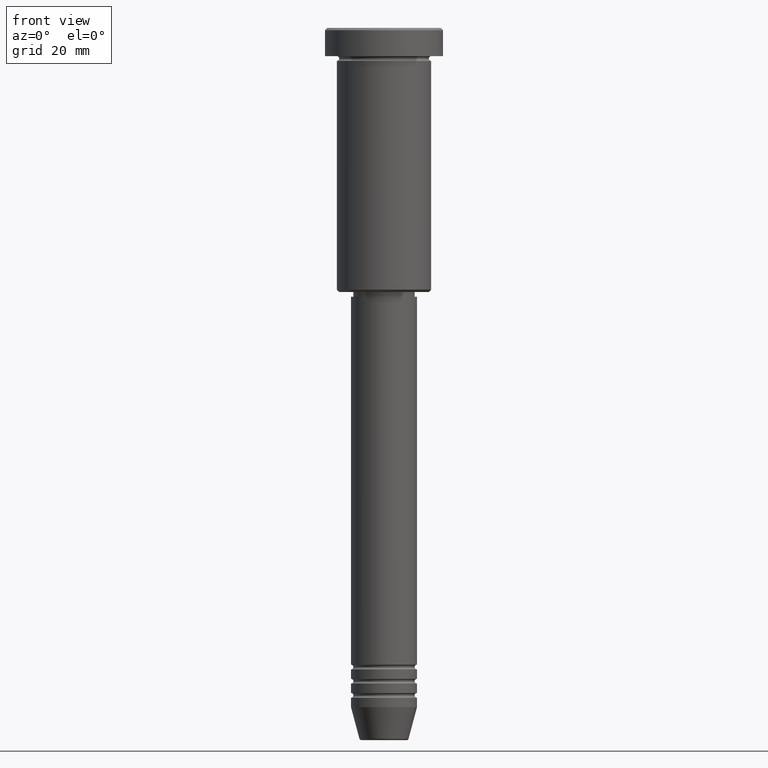
[diagram: clean part render]
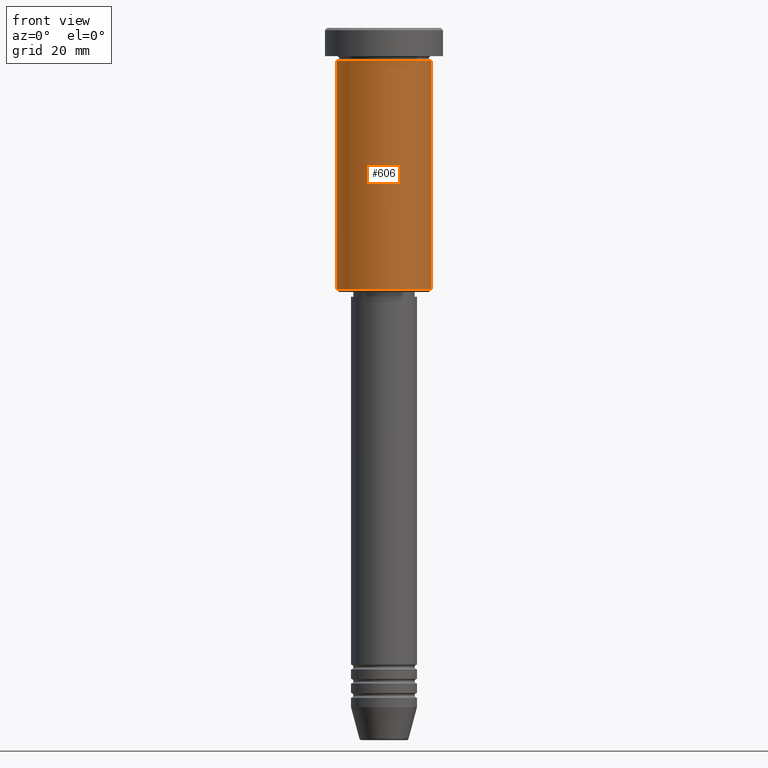
[diagram: same view with one face highlighted and labeled with its STEP entity id]
A machine part, front view. The second image highlights one B-rep face of the part: STEP entity #606.
In plain terms, the highlighted cylindrical surface (partial cylindrical patch) has radius 10 mm, axis along (-0, -0, 1).
Its self-contained STEP definition (entity closure, byte-faithful):
#40 = CARTESIAN_POINT ( 'NONE',  ( 10.00000000000000000, 0.000000000000000000, -55.49999999999995026 ) ) ;
#60 = DIRECTION ( 'NONE',  ( -0.000000000000000000, -0.000000000000000000, 1.000000000000000000 ) ) ;
#70 = VECTOR ( 'NONE', #524, 1000.000000000000000 ) ;
#76 = FACE_OUTER_BOUND ( 'NONE', #956, .T. ) ;
#152 = CARTESIAN_POINT ( 'NONE',  ( 10.00000000000000000, 0.000000000000000000, 0.000000000000000000 ) ) ;
#160 = EDGE_CURVE ( 'NONE', #869, #730, #596, .T. ) ;
#164 = CARTESIAN_POINT ( 'NONE',  ( -10.00000000000000000, 1.224646799147353256E-15, -6.999999999999996447 ) ) ;
#171 = VERTEX_POINT ( 'NONE', #164 ) ;
#186 = AXIS2_PLACEMENT_3D ( 'NONE', #690, #60, #1054 ) ;
#206 = DIRECTION ( 'NONE',  ( -0.000000000000000000, -0.000000000000000000, 1.000000000000000000 ) ) ;
#225 = ORIENTED_EDGE ( 'NONE', *, *, #707, .F. ) ;
#238 = AXIS2_PLACEMENT_3D ( 'NONE', #420, #795, #694 ) ;
#334 = CYLINDRICAL_SURFACE ( 'NONE', #238, 10.00000000000000000 ) ;
#384 = CARTESIAN_POINT ( 'NONE',  ( -10.00000000000000000, 1.224646799147353256E-15, -55.49999999999995026 ) ) ;
#403 = CARTESIAN_POINT ( 'NONE',  ( -10.00000000000000000, 1.224646799147353256E-15, 0.000000000000000000 ) ) ;
#420 = CARTESIAN_POINT ( 'NONE',  ( 0.000000000000000000, 0.000000000000000000, 0.000000000000000000 ) ) ;
#462 = ORIENTED_EDGE ( 'NONE', *, *, #678, .T. ) ;
#524 = DIRECTION ( 'NONE',  ( -0.000000000000000000, -0.000000000000000000, 1.000000000000000000 ) ) ;
#525 = EDGE_CURVE ( 'NONE', #737, #171, #925, .T. ) ;
#560 = CIRCLE ( 'NONE', #186, 10.00000000000000000 ) ;
#562 = CARTESIAN_POINT ( 'NONE',  ( 10.00000000000000000, 0.000000000000000000, -6.999999999999996447 ) ) ;
#596 = LINE ( 'NONE', #152, #70 ) ;
#606 = ADVANCED_FACE ( 'NONE', ( #76 ), #334, .T. ) ;
#659 = ORIENTED_EDGE ( 'NONE', *, *, #160, .T. ) ;
#678 = EDGE_CURVE ( 'NONE', #737, #869, #1153, .T. ) ;
#690 = CARTESIAN_POINT ( 'NONE',  ( 0.000000000000000000, 0.000000000000000000, -6.999999999999996447 ) ) ;
#694 = DIRECTION ( 'NONE',  ( 1.000000000000000000, 0.000000000000000000, 0.000000000000000000 ) ) ;
#707 = EDGE_CURVE ( 'NONE', #171, #730, #560, .T. ) ;
#730 = VERTEX_POINT ( 'NONE', #562 ) ;
#737 = VERTEX_POINT ( 'NONE', #384 ) ;
#795 = DIRECTION ( 'NONE',  ( -0.000000000000000000, -0.000000000000000000, 1.000000000000000000 ) ) ;
#800 = ORIENTED_EDGE ( 'NONE', *, *, #525, .F. ) ;
#817 = DIRECTION ( 'NONE',  ( -0.000000000000000000, -0.000000000000000000, 1.000000000000000000 ) ) ;
#869 = VERTEX_POINT ( 'NONE', #40 ) ;
#898 = VECTOR ( 'NONE', #206, 1000.000000000000000 ) ;
#925 = LINE ( 'NONE', #403, #898 ) ;
#954 = CARTESIAN_POINT ( 'NONE',  ( 0.000000000000000000, 0.000000000000000000, -55.49999999999995026 ) ) ;
#956 = EDGE_LOOP ( 'NONE', ( #800, #462, #659, #225 ) ) ;
#1050 = AXIS2_PLACEMENT_3D ( 'NONE', #954, #817, #1083 ) ;
#1054 = DIRECTION ( 'NONE',  ( 1.000000000000000000, 0.000000000000000000, 0.000000000000000000 ) ) ;
#1083 = DIRECTION ( 'NONE',  ( -1.000000000000000000, 0.000000000000000000, 0.000000000000000000 ) ) ;
#1153 = CIRCLE ( 'NONE', #1050, 10.00000000000000000 ) ;